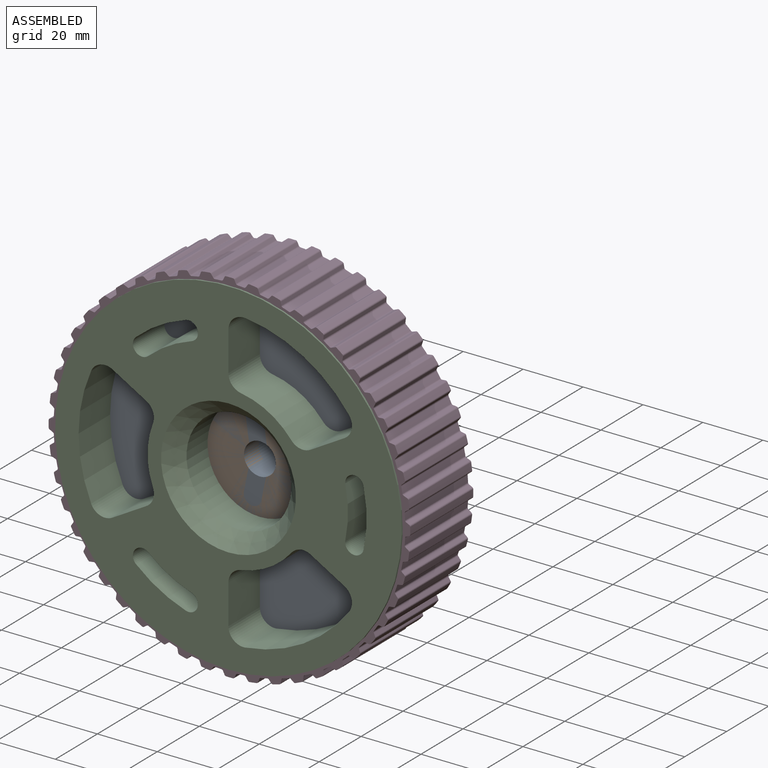
[diagram: assembled view]
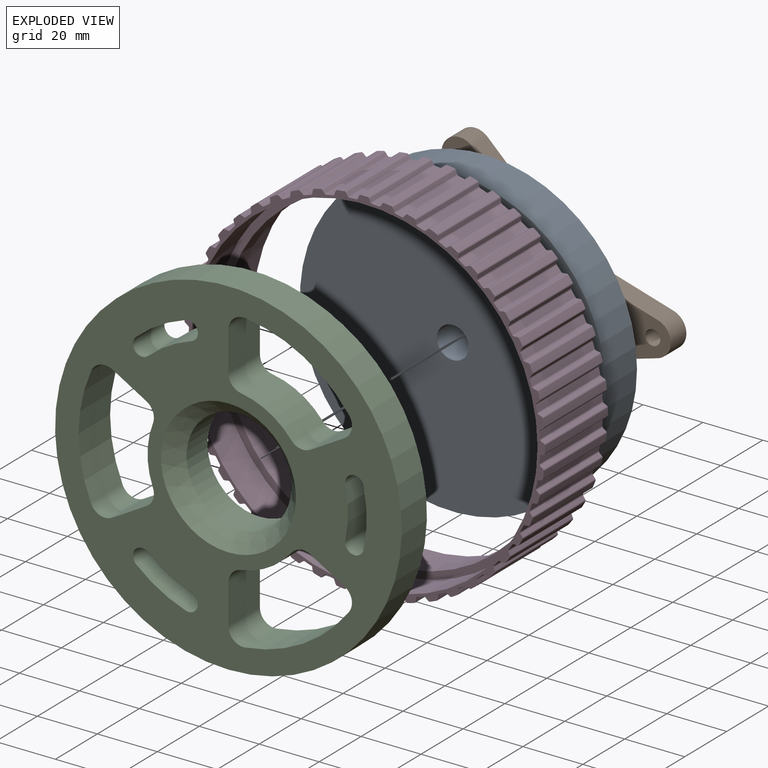
[diagram: exploded view]
GUIDED TOUR — MATED ASSEMBLY (Onshape document 6eb05f2303a7bf940cdb8cd1, AutoMate assembly 6eb05f2303a7bf940cdb8cd1_364548f8d74a8f267cea9362_02ccaff5d884dabc3b46fe63_default)

This assembly has 4 components, labeled P0..P3 below (a component is one placed occurrence of a part; the same part can appear more than once), held together by 3 mates. A mate is a constraint between two components; its type names the relative motion it leaves free:
  FASTENED — locks the two components together rigidly (no relative motion),
  REVOLUTE — leaves rotation about the listed axis free (a hinge).
Axis/direction vectors are unit vectors and 'through' points are millimeter coordinates, both in the assembly's world frame.

MATES
  1. FASTENED "Fest 1": P2 <-> P3, direction (0.000, 1.000, 0.000) through (-28.19, -22.39, -6.44) mm
  2. REVOLUTE "Drehen 2": P2 <-> P1, axis (0.000, 1.000, 0.000) through (-28.19, -19.39, -6.44) mm
  3. REVOLUTE "Drehen 1": P2 <-> P0, axis (0.000, 1.000, 0.000) through (-28.19, -19.39, -6.44) mm

ASSEMBLY ORDER
  1. P2 — the base component [order heuristic]
  2. P0 [order heuristic]
  3. P1 [order heuristic]
  4. P3 [order heuristic]
Order-tag legend:
  [order heuristic] — this assembly is geometrically interlocked (no collision-free removal order exists), so components are listed in mate-graph order; insertion feasibility is not verified.

Of the 4 components, 2 carry the full construction recipe — the FeatureScript program that regenerates the part's solid from scratch; the rest are supplied as boundary geometry only.
Each toured component is shown spotlighted twice — in the assembled view, then in the exploded view, where a leader line traces a displaced component back to its assembled socket (saturated green if recipe-attached, orange if geometry-only; every other component desaturated gray) — followed by its recipe or geometry summary and the mates that hold it.
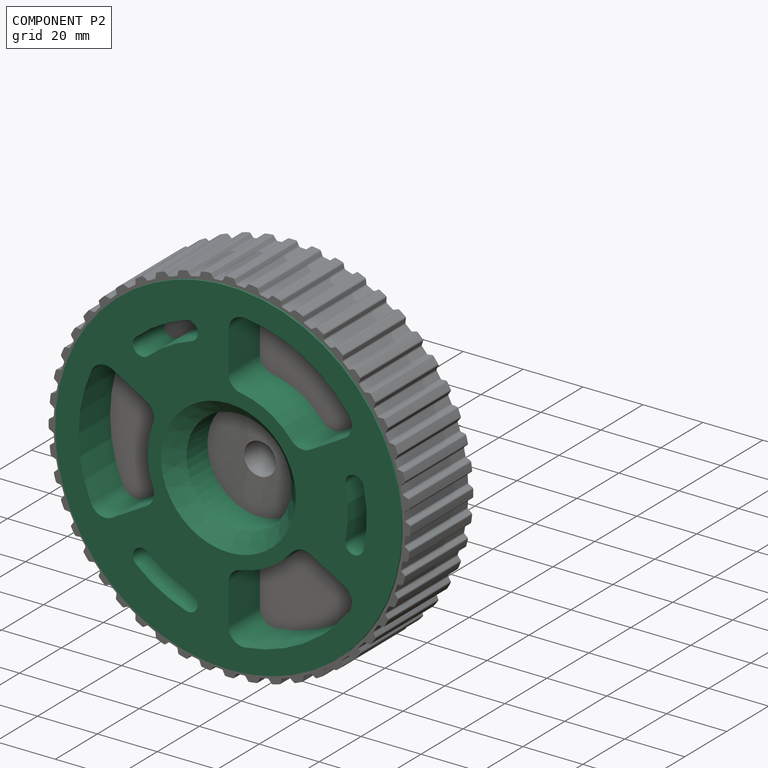
[diagram: component P2 — assembled]
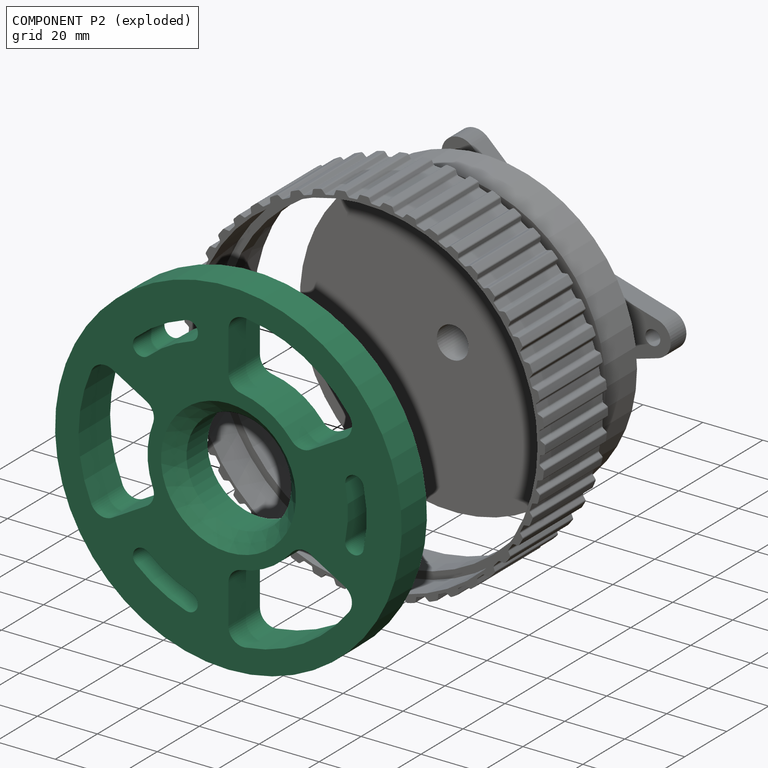
[diagram: component P2 — exploded]
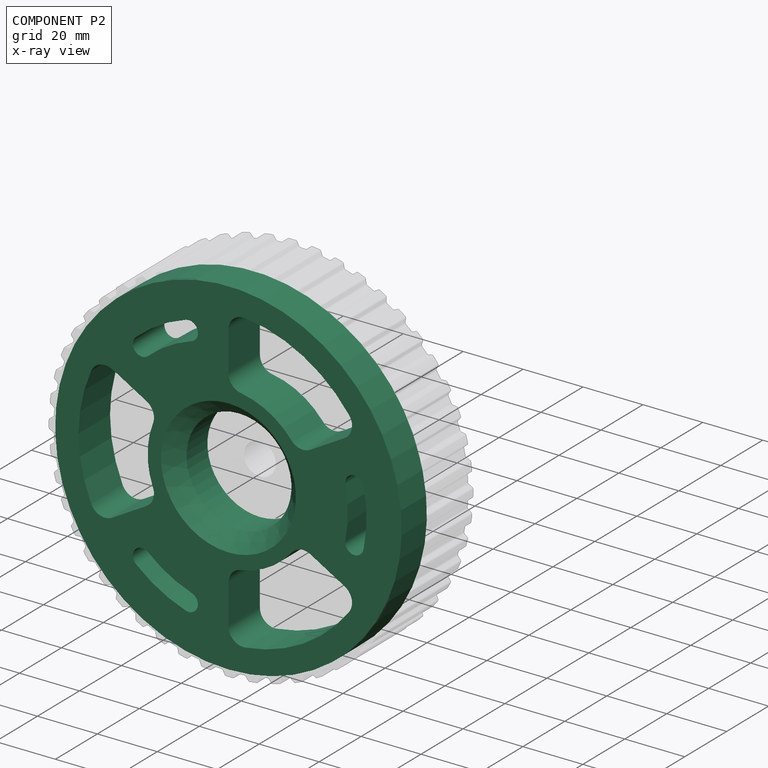
[diagram: component P2 — x-ray view]
COMPONENT P2 — recipe-attached (CADFS 00558429, mesh-verified: the recipe's output STEP matches this component's geometry to below the mesh-comparison resolution (tessellation chordal tolerance ~0.246 mm)).
Held by: FASTENED mate "Fest 1" to P3; REVOLUTE mate "Drehen 2" to P1; REVOLUTE mate "Drehen 1" to P0.
Construction recipe (FeatureScript — the CAD program that rebuilds this solid; sketch coordinates are in the units given by the * unit suffixes, e.g. mm):

FeatureScript 2543;
import(path : "onshape/std/geometry.fs", version : "2543.0");
import(path : "onshape/std/common.fs", version : "2543.0");
const mm = millimeter;
const VERTEX = EntityType.VERTEX;
const EDGE = EntityType.EDGE;
const FACE = EntityType.FACE;
const BODY = EntityType.BODY;
function v(x, y){return vector(x, y);}
function OD(order){return orderDisambiguation(order);}
function OSD(set){return originalSetDisambiguation(set);}
function TD(topology){return topologyDisambiguation(topology);}
function TDD(query){return trueDependencyDisambiguation(query);}
function sQuery(a, b, c) {return sketchEntityQuery(a, b, c);}

annotation { "Feature Type Name" : "Feature", "Feature Type Description" : "" }
export const myFeature = defineFeature(function(context is Context, id is Id, definition is map)
    precondition{}
    {
        {
            var Q0;
            Q0=qCreatedBy(makeId("Front.planeOp"),FACE);
            var sketch = newSketch(context, id + "F0", { "sketchPlane" : qUnion([Q0])});
            skCircle(sketch, "E0", {"center": v(0, 0) * mm, "radius": 57.85 * mm});
            skCircle(sketch, "E1", {"center": v(0, 0) * mm, "radius": 17.5 * mm});
            skArc(sketch, "E2", {"start": v(45.1, -9.6) * mm, "mid": v(46.1, 0) * mm, "end": v(45.1, 9.6) * mm});
            skArc(sketch, "E3", {"start": v(39.03, -8.3) * mm, "mid": v(39.9, 0) * mm, "end": v(39.03, 8.3) * mm});
            skArc(sketch, "E4", {"start": v(45.1, 9.6) * mm, "mid": v(41.41, 11.98) * mm, "end": v(39.03, 8.3) * mm});
            skArc(sketch, "E5", {"start": v(39.03, -8.3) * mm, "mid": v(41.41, -11.98) * mm, "end": v(45.1, -9.6) * mm});
            skArc(sketch, "E6.MirrorCS", {"start": v(-14.23, 43.85) * mm, "mid": v(-10.33, 41.86) * mm, "end": v(-12.32, 37.95) * mm});
            skArc(sketch, "E7.MirrorCS", {"start": v(-30.86, 34.25) * mm, "mid": v(-23.05, 39.92) * mm, "end": v(-14.23, 43.85) * mm});
            skArc(sketch, "E8.MirrorCS", {"start": v(-26.7, 29.64) * mm, "mid": v(-19.95, 34.55) * mm, "end": v(-12.32, 37.95) * mm});
            skArc(sketch, "E9.MirrorCS", {"start": v(-26.7, 29.64) * mm, "mid": v(-31.08, 29.87) * mm, "end": v(-30.86, 34.25) * mm});
            skArc(sketch, "E10.MirrorCS", {"start": v(-14.23, -43.85) * mm, "mid": v(-23.05, -39.92) * mm, "end": v(-30.86, -34.25) * mm});
            skArc(sketch, "E11.MirrorCS", {"start": v(-12.32, -37.95) * mm, "mid": v(-19.95, -34.55) * mm, "end": v(-26.7, -29.64) * mm});
            skArc(sketch, "E12.MirrorCS", {"start": v(-30.86, -34.25) * mm, "mid": v(-31.08, -29.87) * mm, "end": v(-26.7, -29.64) * mm});
            skArc(sketch, "E13.MirrorCS", {"start": v(-12.32, -37.95) * mm, "mid": v(-10.33, -41.86) * mm, "end": v(-14.23, -43.85) * mm});
            skArc(sketch, "E14", {"start": v(-25.2, 9.68) * mm, "mid": v(-27, 0) * mm, "end": v(-25.2, -9.68) * mm});
            skArc(sketch, "E15", {"start": v(-45.81, 20.03) * mm, "mid": v(-50, 0) * mm, "end": v(-45.81, -20.03) * mm});
            skLineSegment(sketch, "E16.trimOffspring", {"start": v(-27.37, 15.8) * mm, "end": v(-38.73, 22.36) * mm});
            skLineSegment(sketch, "E17.trimOffspring", {"start": v(-27.37, -15.8) * mm, "end": v(-38.73, -22.36) * mm});
            skPoint(sketch, "E18.visualSharp", {"position": v(-23.38, 13.5) * mm});
            skArc(sketch, "E18.filletArc", {"start": v(-25.2, 9.68) * mm, "mid": v(-25.16, 13.14) * mm, "end": v(-27.37, 15.8) * mm});
            skPoint(sketch, "E19.visualSharp", {"position": v(-43.3, 25) * mm});
            skArc(sketch, "E19.filletArc", {"start": v(-38.73, 22.36) * mm, "mid": v(-42.8, 22.78) * mm, "end": v(-45.81, 20.03) * mm});
            skPoint(sketch, "E20.visualSharp", {"position": v(-43.3, -25) * mm});
            skArc(sketch, "E20.filletArc", {"start": v(-45.81, -20.03) * mm, "mid": v(-42.8, -22.78) * mm, "end": v(-38.73, -22.36) * mm});
            skPoint(sketch, "E21.visualSharp", {"position": v(-23.38, -13.5) * mm});
            skArc(sketch, "E21.filletArc", {"start": v(-27.37, -15.8) * mm, "mid": v(-25.16, -13.14) * mm, "end": v(-25.2, -9.68) * mm});
            skArc(sketch, "E22.MirrorCS", {"start": v(0, -31.6) * mm, "mid": v(1.2, -28.36) * mm, "end": v(4.22, -26.67) * mm});
            skArc(sketch, "E23.MirrorCS", {"start": v(20.99, -16.99) * mm, "mid": v(23.96, -15.22) * mm, "end": v(27.37, -15.8) * mm});
            skArc(sketch, "E24.MirrorCS", {"start": v(5.56, -49.7) * mm, "mid": v(1.67, -48.45) * mm, "end": v(0, -44.72) * mm});
            skPoint(sketch, "E25.MirrorP", {"position": v(23.38, -13.5) * mm});
            skLineSegment(sketch, "E26.MirrorCS", {"start": v(27.37, -15.8) * mm, "end": v(38.73, -22.36) * mm});
            skPoint(sketch, "E27.MirrorP", {"position": v(0, -50) * mm});
            skPoint(sketch, "E28.MirrorP", {"position": v(0, -27) * mm});
            skArc(sketch, "E29.MirrorCS", {"start": v(20.99, -16.99) * mm, "mid": v(13.5, -23.38) * mm, "end": v(4.22, -26.67) * mm});
            skLineSegment(sketch, "E30.MirrorCS", {"start": v(0, -31.6) * mm, "end": v(0, -44.72) * mm});
            skArc(sketch, "E31.MirrorCS", {"start": v(38.73, -22.36) * mm, "mid": v(41.12, -25.67) * mm, "end": v(40.26, -29.66) * mm});
            skArc(sketch, "E32.MirrorCS", {"start": v(40.26, -29.66) * mm, "mid": v(25, -43.3) * mm, "end": v(5.56, -49.7) * mm});
            skArc(sketch, "E33.MirrorCS", {"start": v(4.22, 26.67) * mm, "mid": v(1.2, 28.36) * mm, "end": v(0, 31.6) * mm});
            skArc(sketch, "E34.MirrorCS", {"start": v(0, 44.72) * mm, "mid": v(1.67, 48.45) * mm, "end": v(5.56, 49.7) * mm});
            skArc(sketch, "E35.MirrorCS", {"start": v(40.26, 29.66) * mm, "mid": v(41.12, 25.67) * mm, "end": v(38.73, 22.36) * mm});
            skArc(sketch, "E36.MirrorCS", {"start": v(4.22, 26.67) * mm, "mid": v(13.5, 23.38) * mm, "end": v(20.99, 16.99) * mm});
            skArc(sketch, "E37.MirrorCS", {"start": v(5.56, 49.7) * mm, "mid": v(25, 43.3) * mm, "end": v(40.26, 29.66) * mm});
            skPoint(sketch, "E38.MirrorP", {"position": v(0, 50) * mm});
            skLineSegment(sketch, "E39.MirrorCS", {"start": v(27.37, 15.8) * mm, "end": v(38.73, 22.36) * mm});
            skArc(sketch, "E40.MirrorCS", {"start": v(27.37, 15.8) * mm, "mid": v(23.96, 15.22) * mm, "end": v(20.99, 16.99) * mm});
            skLineSegment(sketch, "E41.MirrorCS", {"start": v(0, 31.6) * mm, "end": v(0, 44.72) * mm});
            skPoint(sketch, "E42.MirrorP", {"position": v(43.3, 25) * mm});
            skSolve(sketch);
        }
        {
            var Q0;
            Q0=makeQuery(id+"F0.imprint","IMPRINT",FACE,{"disambiguationData":[TD([[makeQuery(id+"F0.imprint","IMPRINT",EDGE,{"derivedFrom":sQuery(id+"F0.wireOp",EDGE,"E0")}),1.0]])]});
            extrude(context, id + "F1", {"entities" : qUnion([Q0]), "depth" : 15 * mm, "offsetDistance" : 25 * mm});
        }
        {
            var Q0;
            Q0=makeQuery(id+"F1.opExtrude","CAP_FACE",FACE,{"disambiguationData":[OSD([sQuery(id+"F0.wireOp",EDGE,"E0"),sQuery(id+"F0.wireOp",EDGE,"QBD5CPNR-eTBn-mDMN-URER-3Hg85SiTSXXa")])],"isStart":true});
            var sketch = newSketch(context, id + "F2", { "sketchPlane" : qUnion([Q0])});
            skCircle(sketch, "E43", {"center": v(0, 0) * mm, "radius": 55.35 * mm});
            skCircle(sketch, "E44", {"center": v(0, 0) * mm, "radius": 57.85 * mm});
            skSolve(sketch);
        }
        {
            var Q0;
            Q0=makeQuery(id+"F2.imprint","IMPRINT",FACE,{"disambiguationData":[TD([[makeQuery(id+"F2.imprint","IMPRINT",EDGE,{"derivedFrom":sQuery(id+"F2.wireOp",EDGE,"E43")}),-1.0]])]});
            extrude(context, id + "F3", {"entities" : qUnion([Q0]), "operationType" : NewBodyOperationType.REMOVE, "oppositeDirection" : true, "depth" : 3 * mm, "offsetDistance" : 25 * mm});
        }
        {
            var Q0;
            Q0=makeQuery(id+"F1.opExtrude","CAP_EDGE",EDGE,{"disambiguationData":[OSD([sQuery(id+"F0.wireOp",EDGE,"E1")])],"isStart":false});
            chamfer(context, id + "F4", {"entities" : qUnion([Q0]), "width" : 5 * mm, "tangentPropagation" : true});
        }
    });
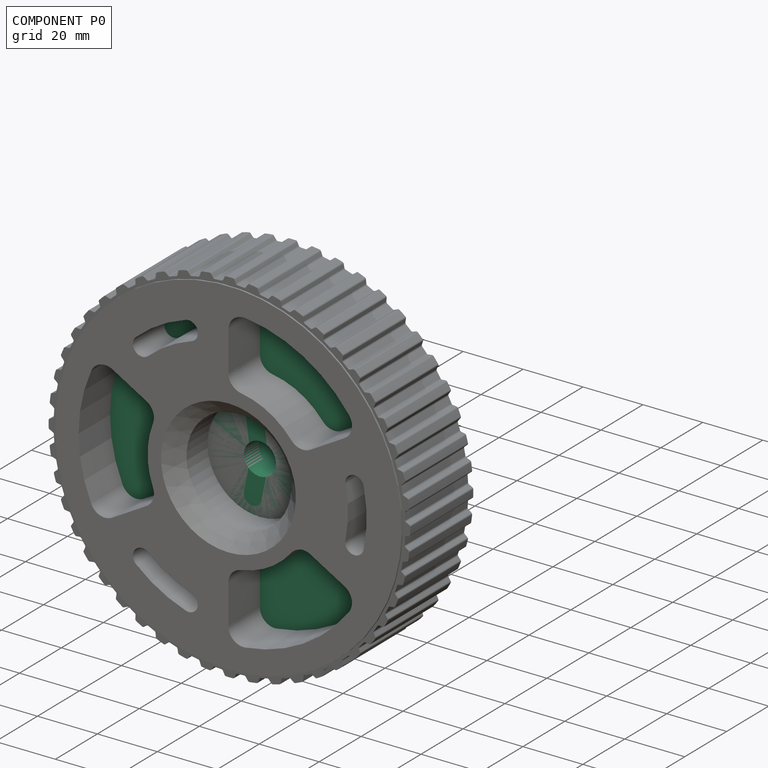
[diagram: component P0 — assembled]
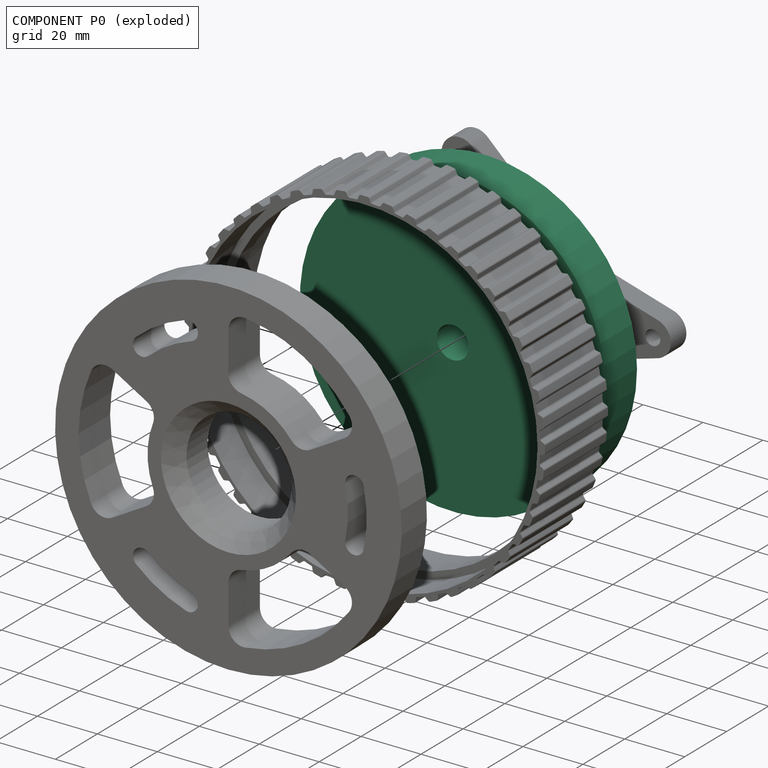
[diagram: component P0 — exploded]
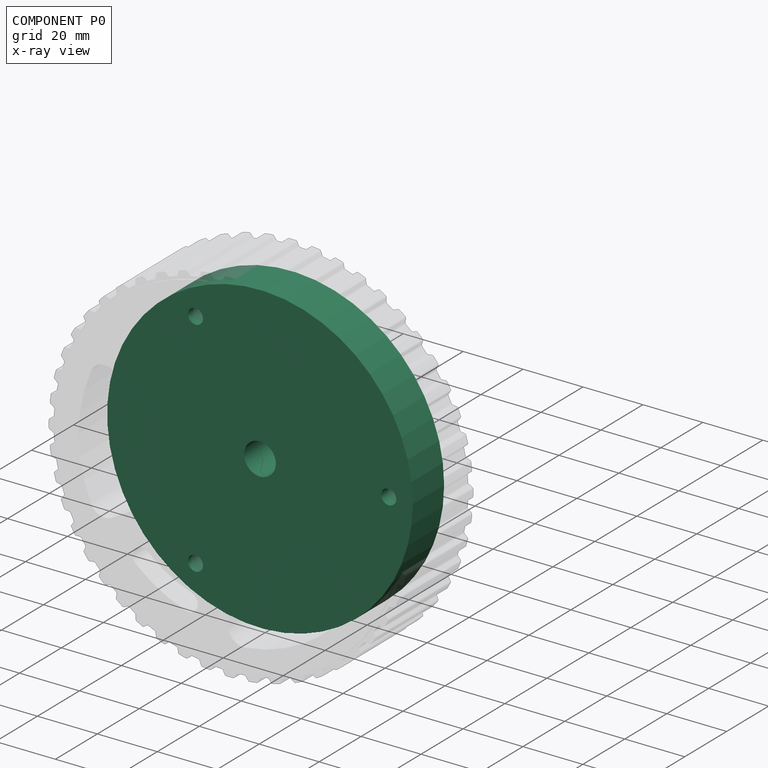
[diagram: component P0 — x-ray view]
COMPONENT P0 — recipe-attached (CADFS 00558436, mesh-verified: the recipe's output STEP matches this component's geometry to below the mesh-comparison resolution (tessellation chordal tolerance ~0.217 mm)).
Held by: REVOLUTE mate "Drehen 1" to P2.
Construction recipe (FeatureScript — the CAD program that rebuilds this solid; sketch coordinates are in the units given by the * unit suffixes, e.g. mm):

FeatureScript 2543;
import(path : "onshape/std/geometry.fs", version : "2543.0");
import(path : "onshape/std/common.fs", version : "2543.0");
const mm = millimeter;
const VERTEX = EntityType.VERTEX;
const EDGE = EntityType.EDGE;
const FACE = EntityType.FACE;
const BODY = EntityType.BODY;
function v(x, y){return vector(x, y);}
function OD(order){return orderDisambiguation(order);}
function OSD(set){return originalSetDisambiguation(set);}
function TD(topology){return topologyDisambiguation(topology);}
function TDD(query){return trueDependencyDisambiguation(query);}
function sQuery(a, b, c) {return sketchEntityQuery(a, b, c);}

annotation { "Feature Type Name" : "Feature", "Feature Type Description" : "" }
export const myFeature = defineFeature(function(context is Context, id is Id, definition is map)
    precondition{}
    {
        {
            var Q0;
            Q0=qCreatedBy(makeId("Front.planeOp"),FACE);
            var sketch = newSketch(context, id + "F0", { "sketchPlane" : qUnion([Q0])});
            skCircle(sketch, "E0", {"center": v(0, 0) * mm, "radius": 51 * mm});
            skArc(sketch, "E1", {"start": v(4.4, 2.98) * mm, "mid": v(3.36, 4.11) * mm, "end": v(2.04, 4.9) * mm});
            skCircle(sketch, "E2", {"center": v(43, 0) * mm, "radius": 2.5 * mm});
            skCircle(sketch, "E3.MirrorC", {"center": v(-21.5, -37.24) * mm, "radius": 2.5 * mm});
            skCircle(sketch, "E4", {"center": v(-21.5, 37.24) * mm, "radius": 2.5 * mm});
            skLineSegment(sketch, "E5.MirrorCS", {"start": v(-3.1, -4.3) * mm, "end": v(-3.68, -4.52) * mm});
            skArc(sketch, "E6.trimOffspring", {"start": v(2.31, -4.78) * mm, "mid": v(3.47, -4.02) * mm, "end": v(4.4, -2.98) * mm});
            skArc(sketch, "E7.MirrorCS", {"start": v(-3.6, -3.9) * mm, "mid": v(-5.3, -0.15) * mm, "end": v(-3.8, 3.7) * mm});
            skArc(sketch, "E8.MirrorCS", {"start": v(2.04, 4.9) * mm, "mid": v(5.3, 0.15) * mm, "end": v(2.31, -4.78) * mm});
            skArc(sketch, "E9.trimOffspring", {"start": v(-3.8, 3.7) * mm, "mid": v(-4.64, 2.6) * mm, "end": v(-5.15, 1.3) * mm});
            skCircle(sketch, "E10", {"center": v(0, 0) * mm, "radius": 5.3 * mm});
            skSolve(sketch);
        }
        {
            var Q0;
            Q0=makeQuery(id+"F0.imprint","IMPRINT",FACE,{"disambiguationData":[TD([[makeQuery(id+"F0.imprint","IMPRINT",EDGE,{"derivedFrom":sQuery(id+"F0.wireOp",EDGE,"E0")}),1.0]])]});
            extrude(context, id + "F1", {"entities" : qUnion([Q0]), "depth" : 8 * mm, "offsetDistance" : 25 * mm, "hasSecondDirection" : true, "secondDirectionOppositeDirection" : true, "secondDirectionDepth" : 7 * mm});
        }
        {
            var Q0;
            Q0=makeQuery(id+"F1.opExtrude","CAP_FACE",FACE,{"disambiguationData":[OSD([sQuery(id+"F0.wireOp",EDGE,"E0"),sQuery(id+"F0.wireOp",EDGE,"E1")])],"isStart":true});
            var sketch = newSketch(context, id + "F2", { "sketchPlane" : qUnion([Q0])});
            skCircle(sketch, "E11", {"center": v(0, 0) * mm, "radius": 55.35 * mm});
            skCircle(sketch, "E12", {"center": v(0, 0) * mm, "radius": 57.85 * mm});
            skSolve(sketch);
        }
        {
            var Q0;
            Q0=makeQuery(id+"F2.imprint","IMPRINT",FACE,{"disambiguationData":[TD([[makeQuery(id+"F2.imprint","IMPRINT",EDGE,{"derivedFrom":sQuery(id+"F2.wireOp",EDGE,"E11")}),-1.0]])]});
            extrude(context, id + "F3", {"entities" : qUnion([Q0]), "operationType" : NewBodyOperationType.REMOVE, "oppositeDirection" : true, "depth" : 3 * mm, "offsetDistance" : 25 * mm});
        }
    });
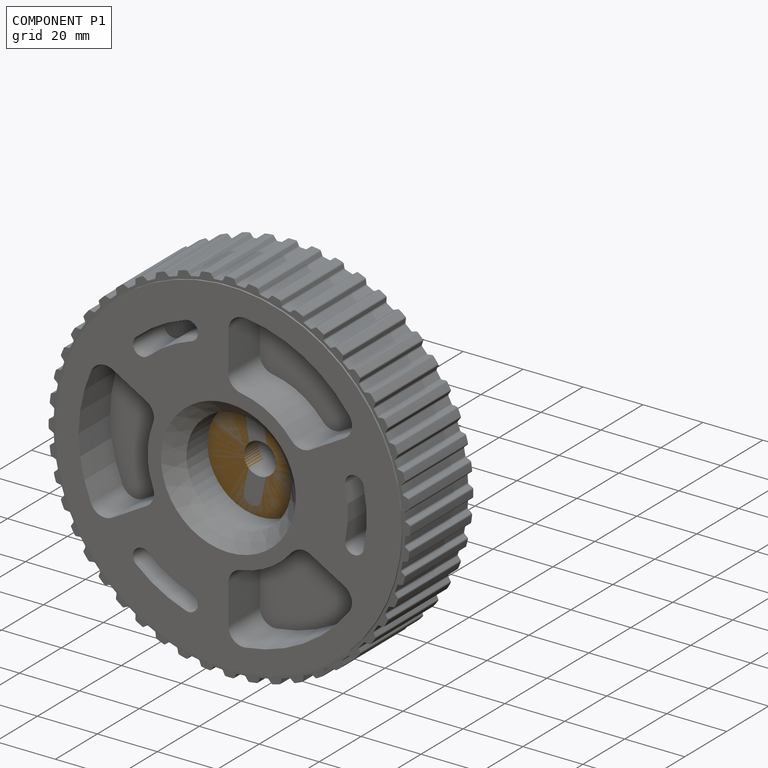
[diagram: component P1 — assembled]
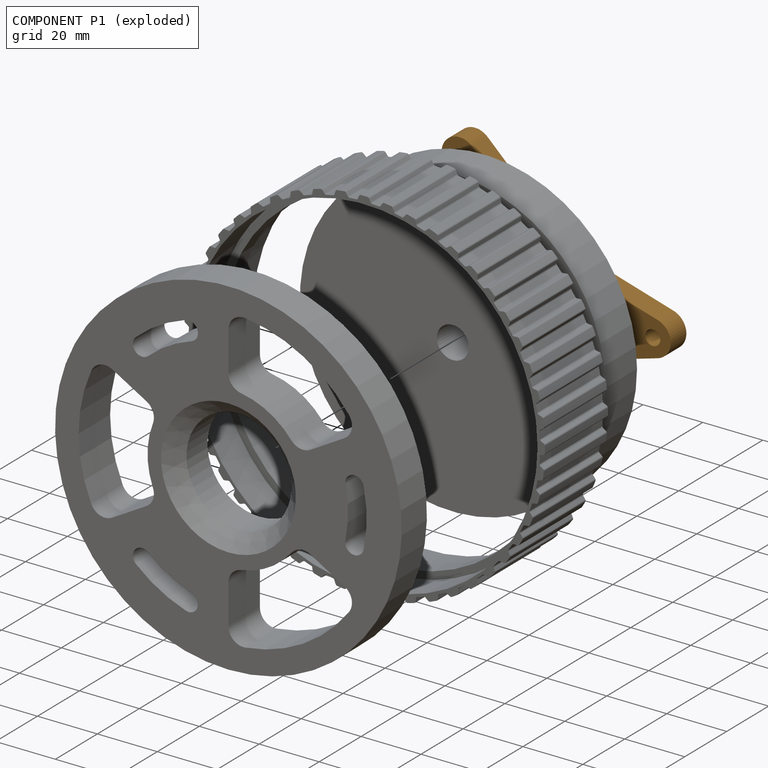
[diagram: component P1 — exploded]
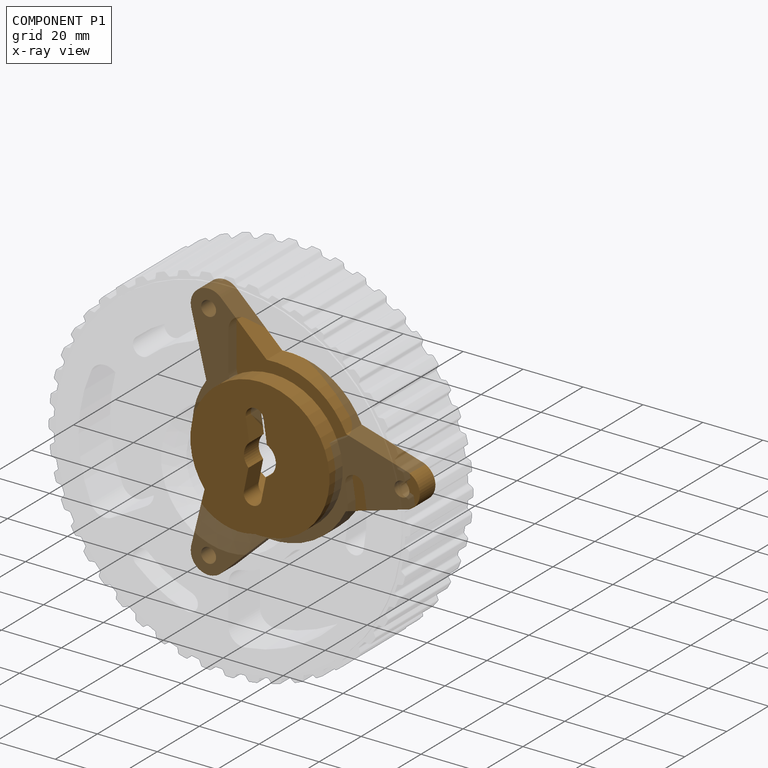
[diagram: component P1 — x-ray view]
COMPONENT P1 — geometry summary (no construction recipe available for this part):
  bounding box: 86.5 x 76.5 x 13.7 mm
  B-rep topology: 1 solid, 31 faces, 168 edges
  volume: 28986 mm^3 (32% of its bounding box)
Held by: REVOLUTE mate "Drehen 2" to P2.
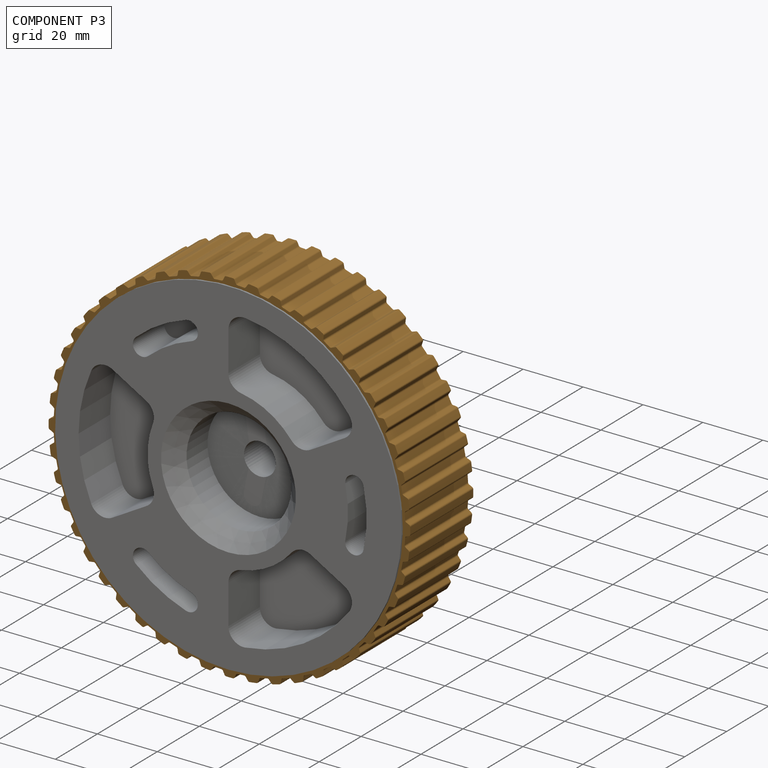
[diagram: component P3 — assembled]
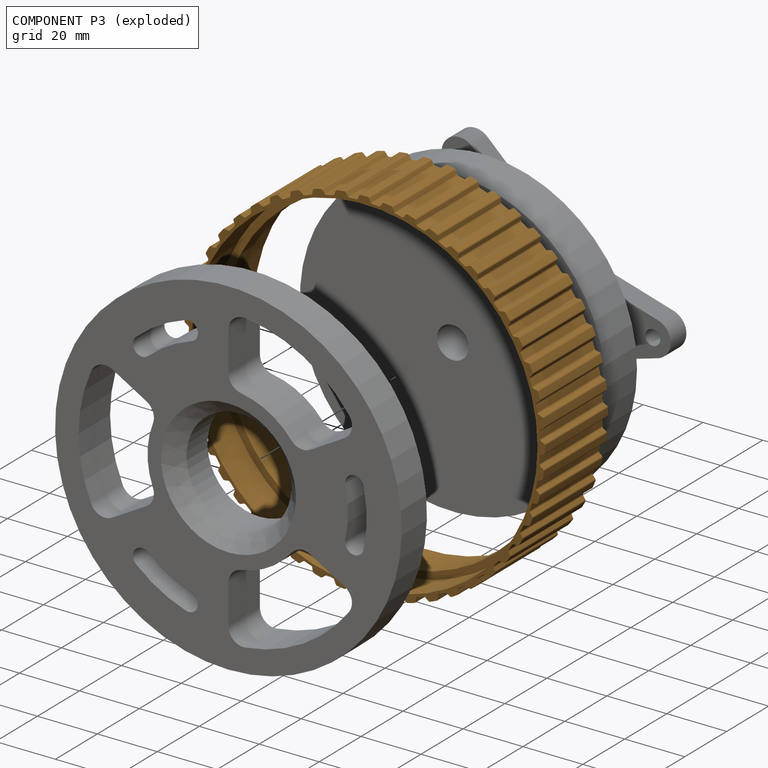
[diagram: component P3 — exploded]
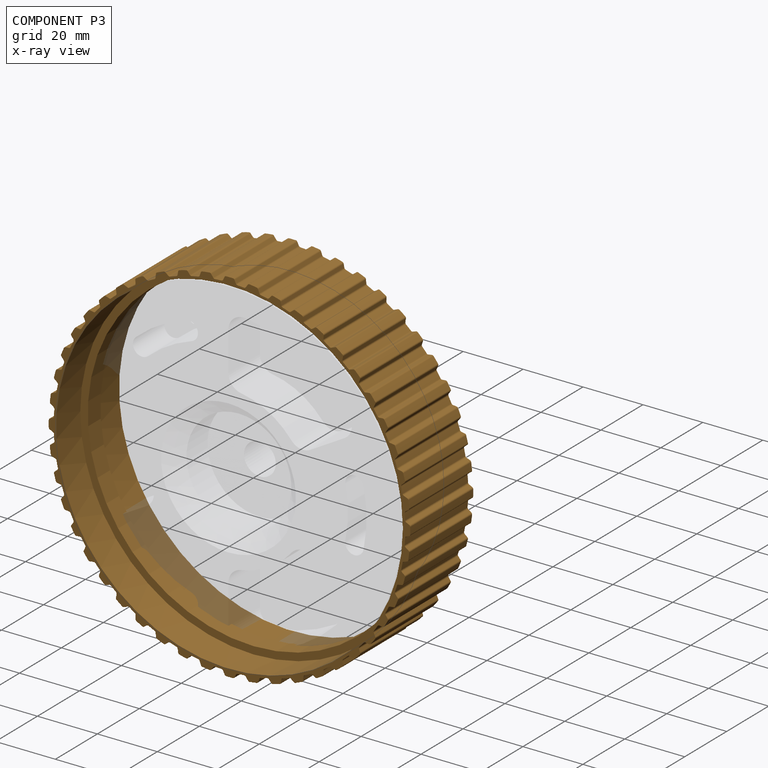
[diagram: component P3 — x-ray view]
COMPONENT P3 — geometry summary (no construction recipe available for this part):
  bounding box: 120.7 x 120.7 x 30.0 mm
  B-rep topology: 1 solid, 439 faces, 2614 edges
  volume: 23810 mm^3 (5% of its bounding box)
  symmetry: 6-fold rotationally symmetric about the y axis; mirror-symmetric across its x mid-plane, z mid-plane
Held by: FASTENED mate "Fest 1" to P2.
PROVENANCE & LICENSES
Assembly (occurrences, transforms, mates, per-part STEP geometry): AutoMate dataset, Zenodo record 7776208, CC0.
Construction recipes: CADFS (HuggingFace VladPyatov/CADFS, CC-BY-4.0, layered over the ABC dataset), FeatureScript reconstruction programs keyed by ABC model id.
Join: ABC meta listings map ABC model id -> Onshape documentId; within a shared document, parts are matched by geometric signature (bounding-box dims + volume at 0.1% relative tolerance, exact B-rep face/solid counts).
Verification: 2 of this assembly's 4 components carry a recipe attachment, and every attachment is mesh-verified: the CADFS STEP and the AutoMate member STEP were compared as meshes in their shared local frame (symmetric sampled-point-to-mesh distance); worst across the 2 attachments: below the mesh-comparison resolution (tessellation chordal tolerance ~0.246 mm) on a 164 mm part.
Renders: orthographic iso camera (az 35 / el 25); the floor grid conveys scale (grid pitch printed in each image; no ruler). In the exploded view each component is displaced by its stored offset vector: the offsets alone carry the explosion direction (mate normal/axis signs are not orientation cues and do not encode it), and separation distances are assigned per mate-chain, not proportionally to assembly-order depth.
